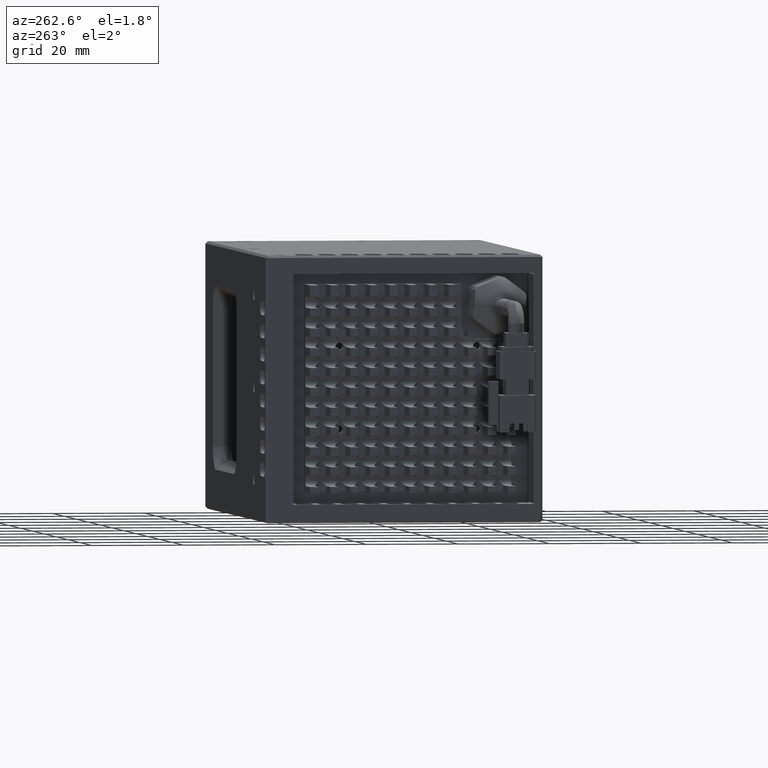
[diagram: clean part render]
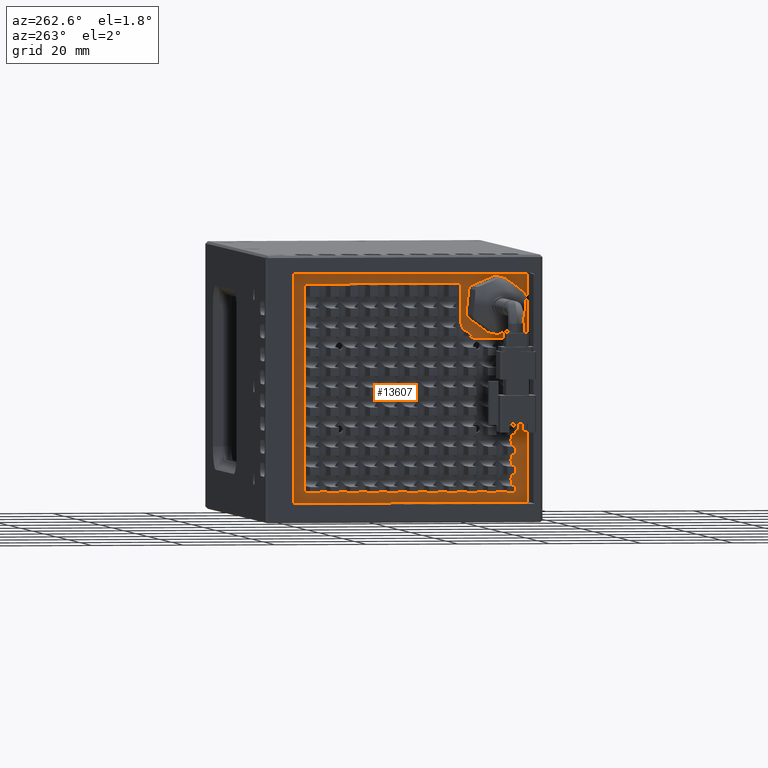
[diagram: same view with one face highlighted and labeled with its STEP entity id]
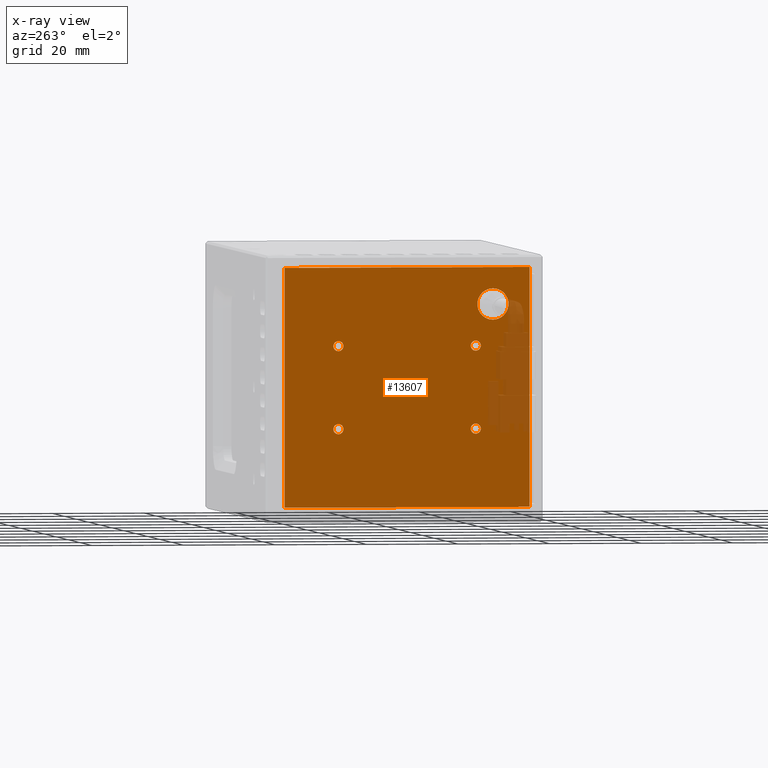
[diagram: x-ray of the same camera — body ghosted, the highlighted face saturated]
A machine part, auxiliary view. The second image highlights one B-rep face of the part: STEP entity #13607.
The next image is the same camera in x-ray: the body ghosted, the highlighted face saturated — about 7% of this face is hidden behind the body in this view.
In plain terms, the highlighted planar face has unit normal (1, 0, 0).
Its self-contained STEP definition (entity closure, byte-faithful):
#196 = CARTESIAN_POINT ( 'NONE',  ( -57.97424922391153500, 47.27599333090264400, 29.00000000000953500 ) ) ;
#232 = VERTEX_POINT ( 'NONE', #38069 ) ;
#266 = VERTEX_POINT ( 'NONE', #16974 ) ;
#291 = CARTESIAN_POINT ( 'NONE',  ( -57.97424922391152800, 5.526993330902594300, 20.00000000000955300 ) ) ;
#625 = CARTESIAN_POINT ( 'NONE',  ( -57.97424922391152800, 35.52699333090259900, 18.90000000000955500 ) ) ;
#1484 = LINE ( 'NONE', #17423, #54527 ) ;
#1565 = VERTEX_POINT ( 'NONE', #23809 ) ;
#1687 = DIRECTION ( 'NONE',  ( 1.866940522374431200E-016, -1.000000000000000000, 1.866940522374431200E-016 ) ) ;
#2104 = VERTEX_POINT ( 'NONE', #12210 ) ;
#2458 = EDGE_CURVE ( 'NONE', #43266, #6621, #39564, .T. ) ;
#3848 = PLANE ( 'NONE',  #11289 ) ;
#4289 = DIRECTION ( 'NONE',  ( -1.000000000000000000, -1.866940522374431200E-016, -0.0000000000000000000 ) ) ;
#4991 = EDGE_LOOP ( 'NONE', ( #57596, #61787 ) ) ;
#5615 = DIRECTION ( 'NONE',  ( -1.000000000000000000, -1.866940522374431200E-016, 0.0000000000000000000 ) ) ;
#5683 = DIRECTION ( 'NONE',  ( 0.0000000000000000000, 0.0000000000000000000, -1.000000000000000000 ) ) ;
#6621 = VERTEX_POINT ( 'NONE', #625 ) ;
#6748 = LINE ( 'NONE', #19313, #59777 ) ;
#6963 = EDGE_LOOP ( 'NONE', ( #22294, #43327 ) ) ;
#7136 = CARTESIAN_POINT ( 'NONE',  ( -57.97424922391152800, 35.52699333090259900, 20.00000000000955300 ) ) ;
#7271 = AXIS2_PLACEMENT_3D ( 'NONE', #31525, #68622, #36911 ) ;
#7827 = EDGE_CURVE ( 'NONE', #21369, #36888, #32203, .T. ) ;
#8168 = DIRECTION ( 'NONE',  ( -1.000000000000000000, -1.866940522374431200E-016, -0.0000000000000000000 ) ) ;
#8539 = FACE_BOUND ( 'NONE', #4991, .T. ) ;
#9088 = DIRECTION ( 'NONE',  ( -1.000000000000000000, -1.866940522374431200E-016, 0.0000000000000000000 ) ) ;
#10160 = FACE_BOUND ( 'NONE', #33967, .T. ) ;
#11289 = AXIS2_PLACEMENT_3D ( 'NONE', #30447, #67538, #35821 ) ;
#12162 = EDGE_CURVE ( 'NONE', #266, #25322, #67610, .T. ) ;
#12210 = CARTESIAN_POINT ( 'NONE',  ( -57.97424922391152800, 35.52699333090259900, 39.10000000000955100 ) ) ;
#12419 = DIRECTION ( 'NONE',  ( 0.0000000000000000000, 0.0000000000000000000, -1.000000000000000000 ) ) ;
#12526 = CARTESIAN_POINT ( 'NONE',  ( -57.97424922391152800, 5.526993330902594300, 18.90000000000955500 ) ) ;
#13607 = ADVANCED_FACE ( 'NONE', ( #36721, #10160, #54122, #50781, #22633, #8539 ), #3848, .F. ) ;
#14149 = EDGE_CURVE ( 'NONE', #56278, #1565, #25706, .T. ) ;
#14779 = CARTESIAN_POINT ( 'NONE',  ( -57.97424922391152100, 1.775993330902642100, 43.60000000000953700 ) ) ;
#15696 = DIRECTION ( 'NONE',  ( -1.000000000000000000, -1.866940522374431200E-016, -0.0000000000000000000 ) ) ;
#15890 = VERTEX_POINT ( 'NONE', #46578 ) ;
#15898 = AXIS2_PLACEMENT_3D ( 'NONE', #36045, #4289, #41391 ) ;
#16161 = ORIENTED_EDGE ( 'NONE', *, *, #31615, .F. ) ;
#16846 = ORIENTED_EDGE ( 'NONE', *, *, #32795, .F. ) ;
#16974 = CARTESIAN_POINT ( 'NONE',  ( -57.97424922391153500, 47.27599333090264400, 3.000000000009529700 ) ) ;
#17423 = CARTESIAN_POINT ( 'NONE',  ( -57.97424922391152800, 20.52599333090264400, 55.00000000000953500 ) ) ;
#18292 = AXIS2_PLACEMENT_3D ( 'NONE', #47474, #15696, #52788 ) ;
#19313 = CARTESIAN_POINT ( 'NONE',  ( -57.97424922391152100, -6.224006669097361700, 29.00000000000954300 ) ) ;
#20163 = CIRCLE ( 'NONE', #18292, 1.099999999999996800 ) ;
#20226 = DIRECTION ( 'NONE',  ( -1.000000000000000000, -1.866940522374431200E-016, -0.0000000000000000000 ) ) ;
#20555 = LINE ( 'NONE', #57883, #34688 ) ;
#20809 = DIRECTION ( 'NONE',  ( -1.866940522374431200E-016, 1.000000000000000000, -1.866940522374431200E-016 ) ) ;
#21369 = VERTEX_POINT ( 'NONE', #37516 ) ;
#21453 = CARTESIAN_POINT ( 'NONE',  ( -57.97424922391153500, 47.27599333090264400, 55.00000000000952800 ) ) ;
#22294 = ORIENTED_EDGE ( 'NONE', *, *, #66874, .F. ) ;
#22633 = FACE_BOUND ( 'NONE', #23045, .T. ) ;
#23045 = EDGE_LOOP ( 'NONE', ( #32024, #39561 ) ) ;
#23386 = CARTESIAN_POINT ( 'NONE',  ( -57.97424922391152800, 35.52699333090259900, 38.00000000000955700 ) ) ;
#23809 = CARTESIAN_POINT ( 'NONE',  ( -57.97424922391152800, 5.526993330902597800, 36.90000000000954800 ) ) ;
#24158 = ORIENTED_EDGE ( 'NONE', *, *, #30085, .F. ) ;
#25322 = VERTEX_POINT ( 'NONE', #21453 ) ;
#25331 = VECTOR ( 'NONE', #42628, 1000.000000000000000 ) ;
#25706 = CIRCLE ( 'NONE', #53510, 1.099999999999996800 ) ;
#26922 = AXIS2_PLACEMENT_3D ( 'NONE', #39878, #8168, #45258 ) ;
#27767 = CARTESIAN_POINT ( 'NONE',  ( -57.97424922391152100, -6.224006669097358100, 55.00000000000954300 ) ) ;
#28482 = CIRCLE ( 'NONE', #26922, 1.099999999999996800 ) ;
#28689 = DIRECTION ( 'NONE',  ( 0.0000000000000000000, 0.0000000000000000000, -1.000000000000000000 ) ) ;
#29265 = CIRCLE ( 'NONE', #29949, 3.400000000000000400 ) ;
#29494 = AXIS2_PLACEMENT_3D ( 'NONE', #291, #37388, #5683 ) ;
#29949 = AXIS2_PLACEMENT_3D ( 'NONE', #37317, #5615, #42667 ) ;
#30085 = EDGE_CURVE ( 'NONE', #15890, #47249, #52525, .T. ) ;
#30132 = ORIENTED_EDGE ( 'NONE', *, *, #34718, .F. ) ;
#30447 = CARTESIAN_POINT ( 'NONE',  ( -57.97424922391152800, 20.52599333090264000, 29.00000000000953900 ) ) ;
#30542 = CARTESIAN_POINT ( 'NONE',  ( -57.97424922391152800, 35.52699333090259900, 36.90000000000955500 ) ) ;
#31525 = CARTESIAN_POINT ( 'NONE',  ( -57.97424922391152800, 35.52699333090259900, 38.00000000000955700 ) ) ;
#31615 = EDGE_CURVE ( 'NONE', #25322, #67624, #1484, .T. ) ;
#32024 = ORIENTED_EDGE ( 'NONE', *, *, #57036, .F. ) ;
#32203 = CIRCLE ( 'NONE', #29494, 1.099999999999996800 ) ;
#32752 = AXIS2_PLACEMENT_3D ( 'NONE', #40851, #9088, #46176 ) ;
#32795 = EDGE_CURVE ( 'NONE', #232, #266, #20555, .T. ) ;
#33967 = EDGE_LOOP ( 'NONE', ( #24158, #54779 ) ) ;
#34688 = VECTOR ( 'NONE', #20809, 1000.000000000000000 ) ;
#34718 = EDGE_CURVE ( 'NONE', #67624, #232, #6748, .T. ) ;
#35821 = DIRECTION ( 'NONE',  ( 3.485466914083714000E-032, -1.866940522374431200E-016, -1.000000000000000000 ) ) ;
#36045 = CARTESIAN_POINT ( 'NONE',  ( -57.97424922391152800, 35.52699333090259900, 20.00000000000955300 ) ) ;
#36721 = FACE_OUTER_BOUND ( 'NONE', #59209, .T. ) ;
#36888 = VERTEX_POINT ( 'NONE', #12526 ) ;
#36911 = DIRECTION ( 'NONE',  ( 0.0000000000000000000, 0.0000000000000000000, -1.000000000000000000 ) ) ;
#37317 = CARTESIAN_POINT ( 'NONE',  ( -57.97424922391152100, 1.775993330902642100, 47.00000000000953500 ) ) ;
#37388 = DIRECTION ( 'NONE',  ( -1.000000000000000000, -1.866940522374431200E-016, -0.0000000000000000000 ) ) ;
#37516 = CARTESIAN_POINT ( 'NONE',  ( -57.97424922391152800, 5.526993330902594300, 21.10000000000954800 ) ) ;
#38069 = CARTESIAN_POINT ( 'NONE',  ( -57.97424922391152100, -6.224006669097358100, 3.000000000009536800 ) ) ;
#39439 = EDGE_LOOP ( 'NONE', ( #58418, #67939 ) ) ;
#39561 = ORIENTED_EDGE ( 'NONE', *, *, #2458, .F. ) ;
#39564 = CIRCLE ( 'NONE', #15898, 1.099999999999996800 ) ;
#39878 = CARTESIAN_POINT ( 'NONE',  ( -57.97424922391152800, 5.526993330902594300, 20.00000000000955300 ) ) ;
#40851 = CARTESIAN_POINT ( 'NONE',  ( -57.97424922391152100, 1.775993330902642100, 47.00000000000953500 ) ) ;
#41391 = DIRECTION ( 'NONE',  ( 0.0000000000000000000, 0.0000000000000000000, -1.000000000000000000 ) ) ;
#41904 = CARTESIAN_POINT ( 'NONE',  ( -57.97424922391152800, 35.52699333090259900, 21.10000000000954800 ) ) ;
#42278 = CIRCLE ( 'NONE', #7271, 1.099999999999996800 ) ;
#42628 = DIRECTION ( 'NONE',  ( -3.485466914083714000E-032, 1.866940522374431200E-016, 1.000000000000000000 ) ) ;
#42667 = DIRECTION ( 'NONE',  ( 0.0000000000000000000, 1.913297951445007600E-016, 1.000000000000000000 ) ) ;
#42993 = EDGE_CURVE ( 'NONE', #63618, #2104, #47978, .T. ) ;
#43266 = VERTEX_POINT ( 'NONE', #41904 ) ;
#43327 = ORIENTED_EDGE ( 'NONE', *, *, #14149, .F. ) ;
#44200 = DIRECTION ( 'NONE',  ( -1.000000000000000000, -1.866940522374431200E-016, -0.0000000000000000000 ) ) ;
#44416 = AXIS2_PLACEMENT_3D ( 'NONE', #7136, #44200, #12419 ) ;
#45258 = DIRECTION ( 'NONE',  ( 0.0000000000000000000, 0.0000000000000000000, -1.000000000000000000 ) ) ;
#46176 = DIRECTION ( 'NONE',  ( 0.0000000000000000000, 1.913297951445007600E-016, 1.000000000000000000 ) ) ;
#46578 = CARTESIAN_POINT ( 'NONE',  ( -57.97424922391152100, 1.775993330902642800, 50.40000000000953400 ) ) ;
#47249 = VERTEX_POINT ( 'NONE', #14779 ) ;
#47474 = CARTESIAN_POINT ( 'NONE',  ( -57.97424922391152800, 5.526993330902597800, 38.00000000000955000 ) ) ;
#47978 = CIRCLE ( 'NONE', #53791, 1.099999999999996800 ) ;
#50781 = FACE_BOUND ( 'NONE', #6963, .T. ) ;
#51969 = CARTESIAN_POINT ( 'NONE',  ( -57.97424922391152800, 5.526993330902597800, 38.00000000000955000 ) ) ;
#52525 = CIRCLE ( 'NONE', #32752, 3.400000000000000400 ) ;
#52788 = DIRECTION ( 'NONE',  ( 0.0000000000000000000, 0.0000000000000000000, -1.000000000000000000 ) ) ;
#53510 = AXIS2_PLACEMENT_3D ( 'NONE', #51969, #20226, #57272 ) ;
#53791 = AXIS2_PLACEMENT_3D ( 'NONE', #23386, #60445, #28689 ) ;
#54122 = FACE_BOUND ( 'NONE', #39439, .T. ) ;
#54527 = VECTOR ( 'NONE', #1687, 1000.000000000000000 ) ;
#54681 = EDGE_CURVE ( 'NONE', #47249, #15890, #29265, .T. ) ;
#54779 = ORIENTED_EDGE ( 'NONE', *, *, #54681, .F. ) ;
#56278 = VERTEX_POINT ( 'NONE', #68308 ) ;
#57036 = EDGE_CURVE ( 'NONE', #6621, #43266, #61838, .T. ) ;
#57272 = DIRECTION ( 'NONE',  ( 0.0000000000000000000, 0.0000000000000000000, -1.000000000000000000 ) ) ;
#57596 = ORIENTED_EDGE ( 'NONE', *, *, #42993, .F. ) ;
#57883 = CARTESIAN_POINT ( 'NONE',  ( -57.97424922391152800, 20.52599333090263700, 3.000000000009533300 ) ) ;
#58418 = ORIENTED_EDGE ( 'NONE', *, *, #59905, .F. ) ;
#59209 = EDGE_LOOP ( 'NONE', ( #67602, #16846, #30132, #16161 ) ) ;
#59777 = VECTOR ( 'NONE', #67041, 1000.000000000000000 ) ;
#59905 = EDGE_CURVE ( 'NONE', #36888, #21369, #28482, .T. ) ;
#60445 = DIRECTION ( 'NONE',  ( -1.000000000000000000, -1.866940522374431200E-016, -0.0000000000000000000 ) ) ;
#61787 = ORIENTED_EDGE ( 'NONE', *, *, #63142, .F. ) ;
#61838 = CIRCLE ( 'NONE', #44416, 1.099999999999996800 ) ;
#63142 = EDGE_CURVE ( 'NONE', #2104, #63618, #42278, .T. ) ;
#63618 = VERTEX_POINT ( 'NONE', #30542 ) ;
#66874 = EDGE_CURVE ( 'NONE', #1565, #56278, #20163, .T. ) ;
#67041 = DIRECTION ( 'NONE',  ( 3.485466914083714000E-032, -1.866940522374431200E-016, -1.000000000000000000 ) ) ;
#67538 = DIRECTION ( 'NONE',  ( 1.000000000000000000, 1.866940522374431200E-016, 0.0000000000000000000 ) ) ;
#67602 = ORIENTED_EDGE ( 'NONE', *, *, #12162, .F. ) ;
#67610 = LINE ( 'NONE', #196, #25331 ) ;
#67624 = VERTEX_POINT ( 'NONE', #27767 ) ;
#67939 = ORIENTED_EDGE ( 'NONE', *, *, #7827, .F. ) ;
#68308 = CARTESIAN_POINT ( 'NONE',  ( -57.97424922391152800, 5.526993330902597800, 39.10000000000954400 ) ) ;
#68622 = DIRECTION ( 'NONE',  ( -1.000000000000000000, -1.866940522374431200E-016, -0.0000000000000000000 ) ) ;